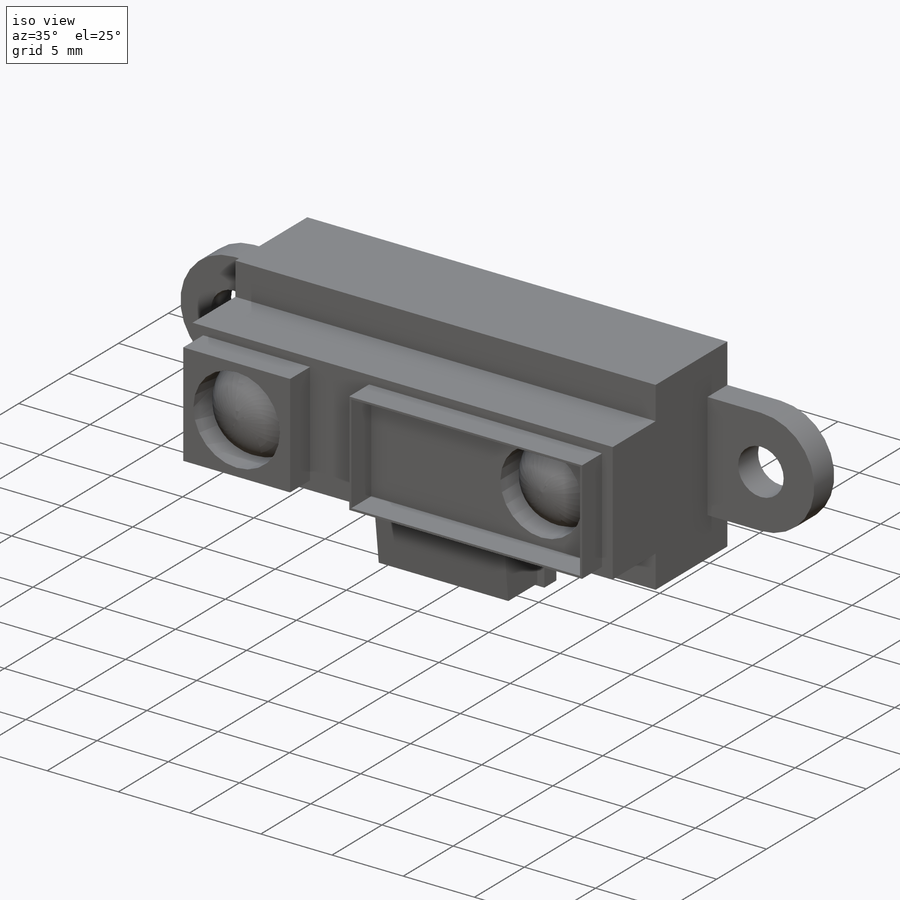
[diagram: iso view]
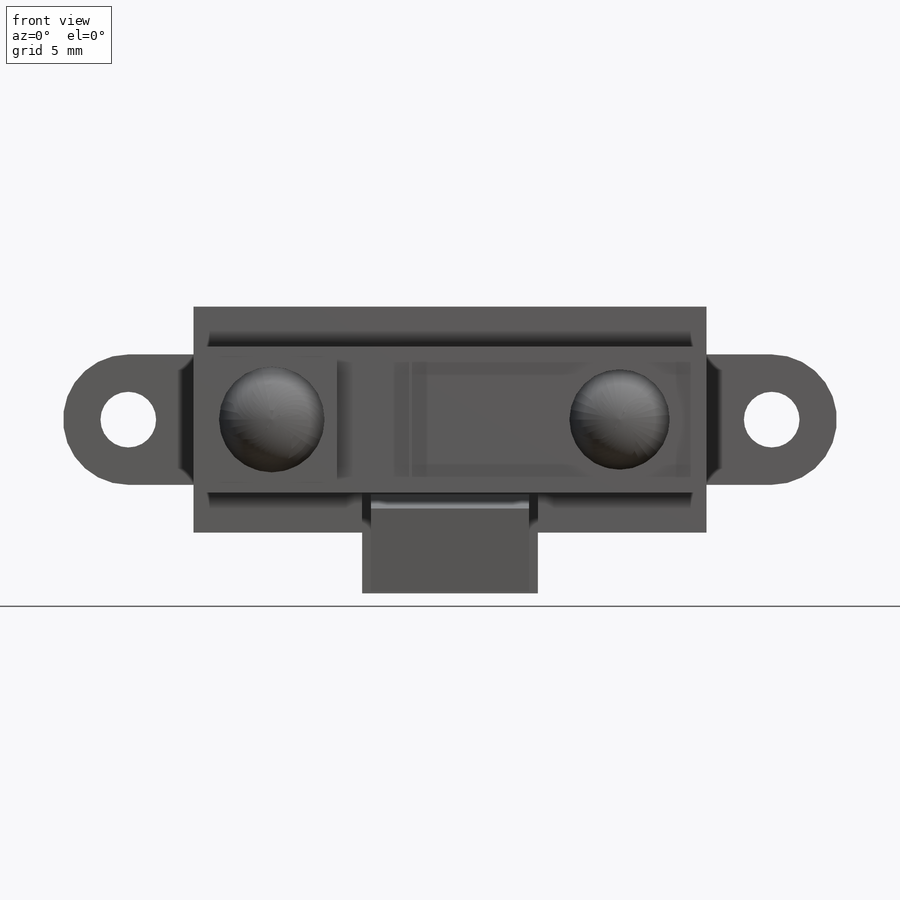
[diagram: front view]
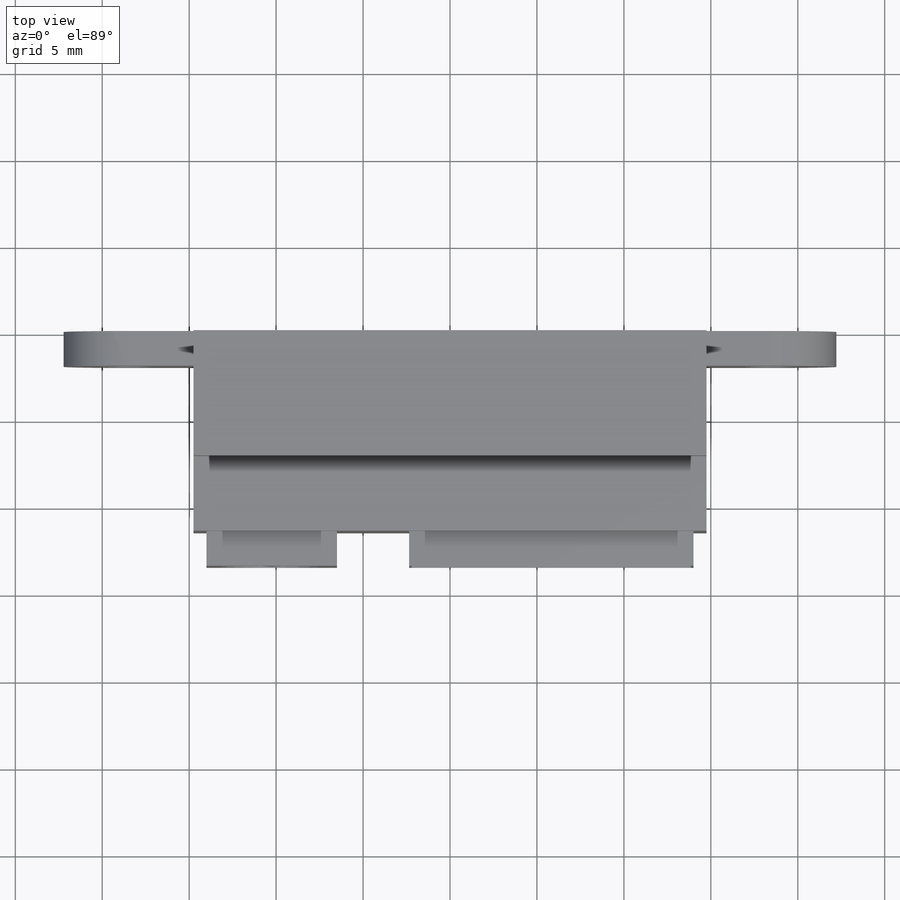
[diagram: top view]
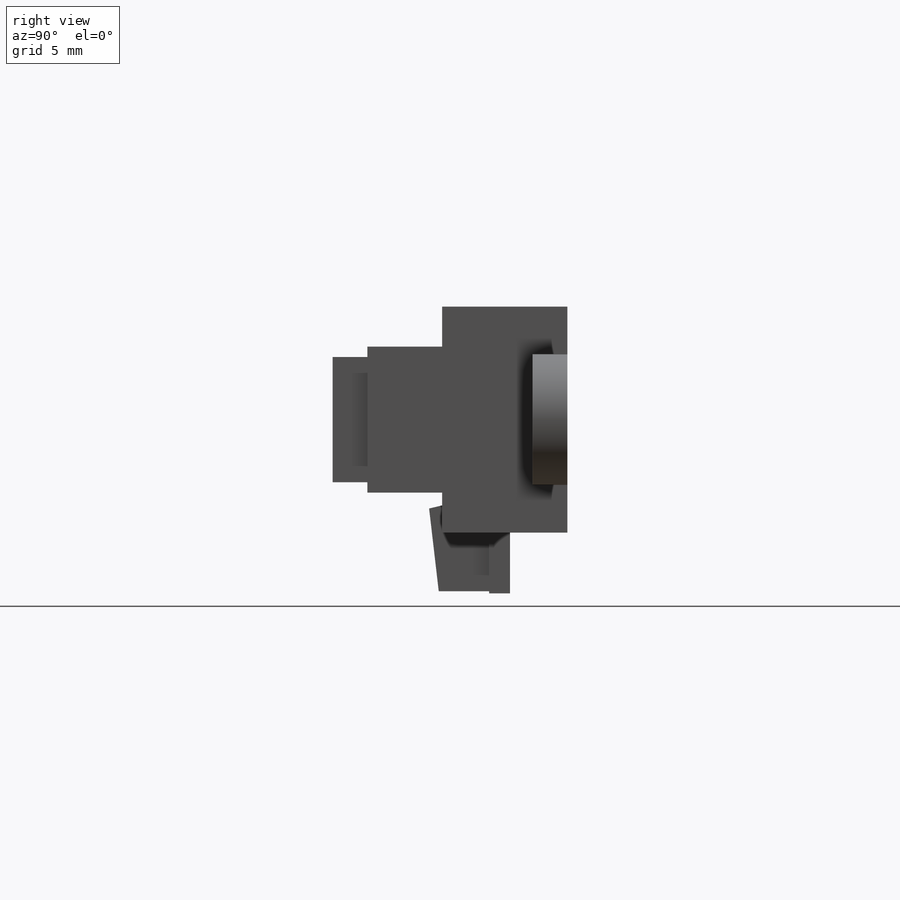
[diagram: right view]
SOLIDWORKS PART (.sldprt)
format: sldprt  version: not decoded by parser v0  size: 359,936 bytes
history: native  units: mm
features: sketch x15, plane x6, extrude x5, cut_extrude x3, hole x2, revolve x2, material x1 (+10 scaffold rows collapsed)
feature tree (44):
  scaffold x10  (default folders/planes/origin — collapsed)
  material  "ABS generico"
  plane  "Piano frontale"
  plane  "Piano superiore"
  plane  "Piano destro"
  plane  "Piano1"  Offset=4.5mm
  sketch  "Schizzo1"
  extrude  "Estrusione-Estrusione1"  Depth=4.5mm
  plane  "Piano2"
  sketch  "Schizzo2"  dims[D1=~4.78818mm D3=~6.634204deg]
  sketch  "Schizzo3"
  extrude  "Estrusione-Estrusione2"  Depth=7mm
  sketch  "Schizzo4"
  cut_extrude  "Taglio-Estrusione1"  Depth=3.3mm
  plane  "Piano3"
  sketch  "Schizzo5"
  extrude  "Estrusione-Estrusione3"  Depth=2mm
  hole  "Foro1"  Diameter=3.2mm Depth=2.00005mm
  sketch  "Schizzo7"
  sketch  "Schizzo6"  dims[Diameter=3.2mm Depth=~2.00005mm]
  hole  "Foro2"  Diameter=3.2mm Depth=2.00005mm
  sketch  "Schizzo9"
  sketch  "Schizzo8"  dims[Diameter=3.2mm Depth=~2.00005mm]
  sketch  "Schizzo10"
  cut_extrude  "Taglio-Estrusione2"  Depth=4.3mm
  sketch  "Schizzo11"
  extrude  "Estrusione-Estrusione4"  Depth=2mm
  sketch  "Schizzo12"
  cut_extrude  "Taglio-Estrusione3"  Depth=2mm
  sketch  "Schizzo13"
  revolve  "Rivoluzione1"  Angle=360deg
  sketch  "Schizzo14"
  revolve  "Rivoluzione2"  Angle=360deg
  sketch  "Schizzo15"
  extrude  "Estrusione-Estrusione5"  Depth=2mm
decode coverage: 15 of 27 modeling features carry decoded parameters
note: ~ marks probable driven/reference dimensions
note: suppression state not decoded; provenance and decode notes live in map.json
